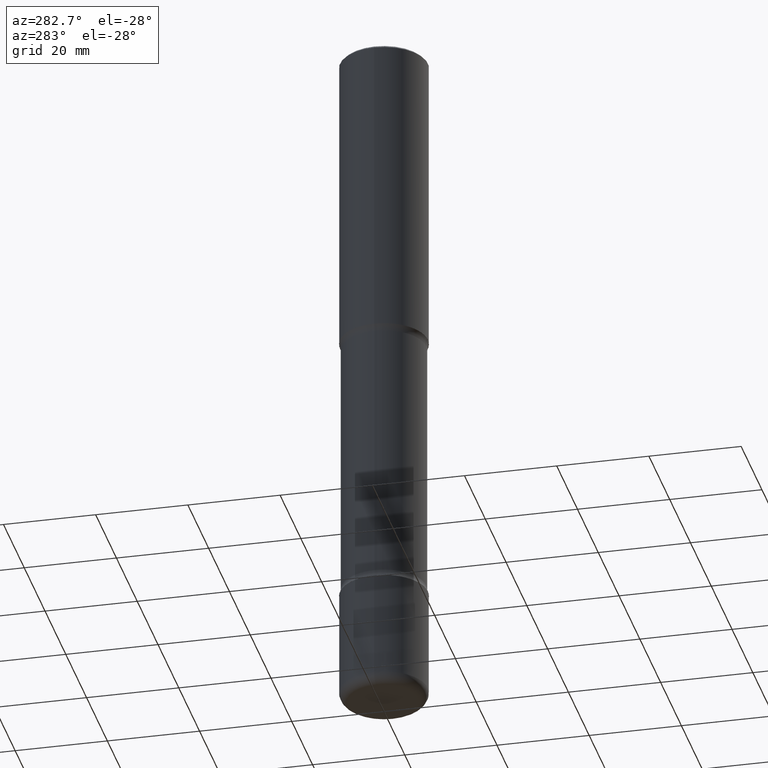
[diagram: clean part render]
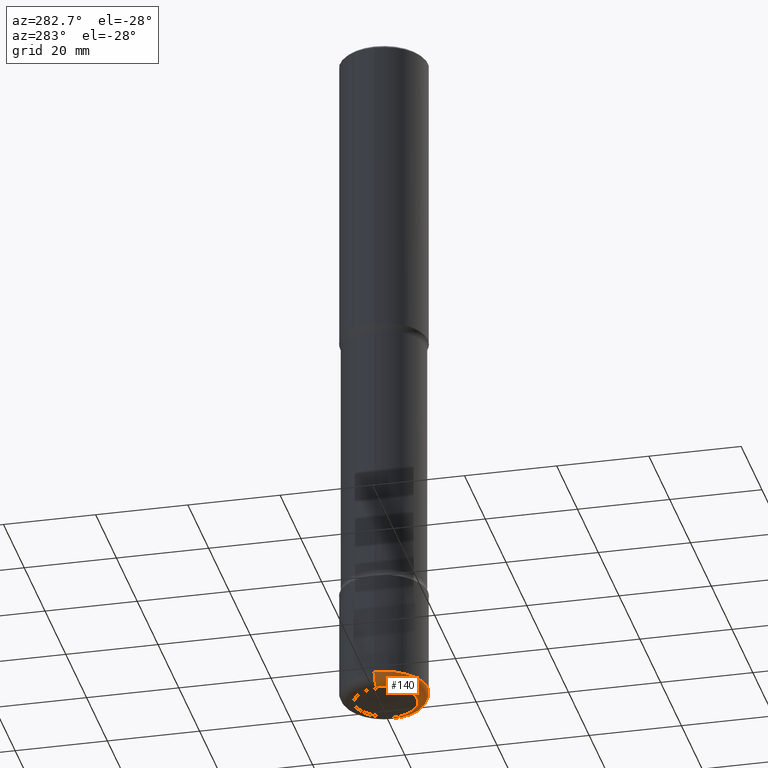
[diagram: same view with one face highlighted and labeled with its STEP entity id]
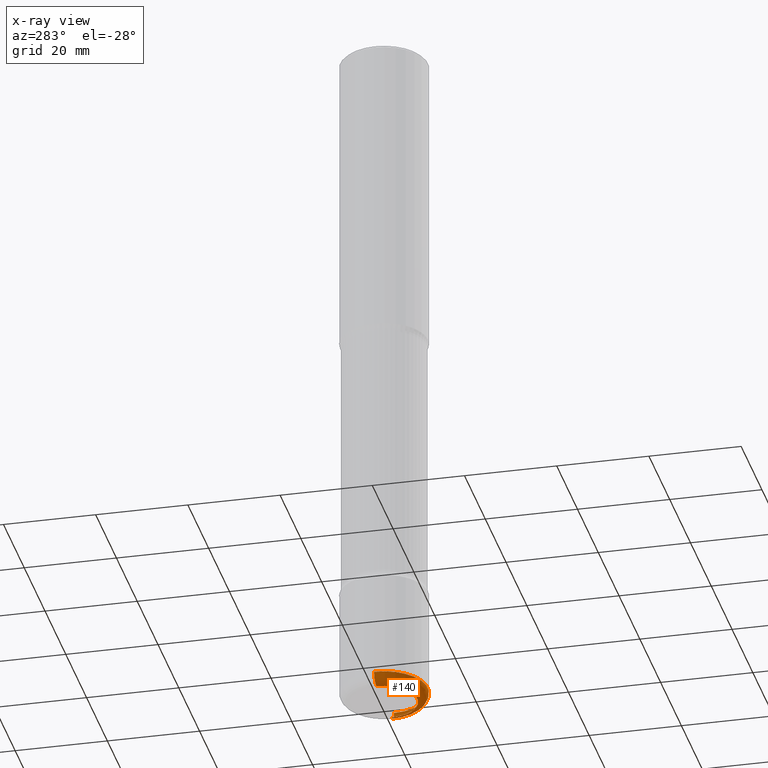
[diagram: x-ray of the same camera — body ghosted, the highlighted face saturated]
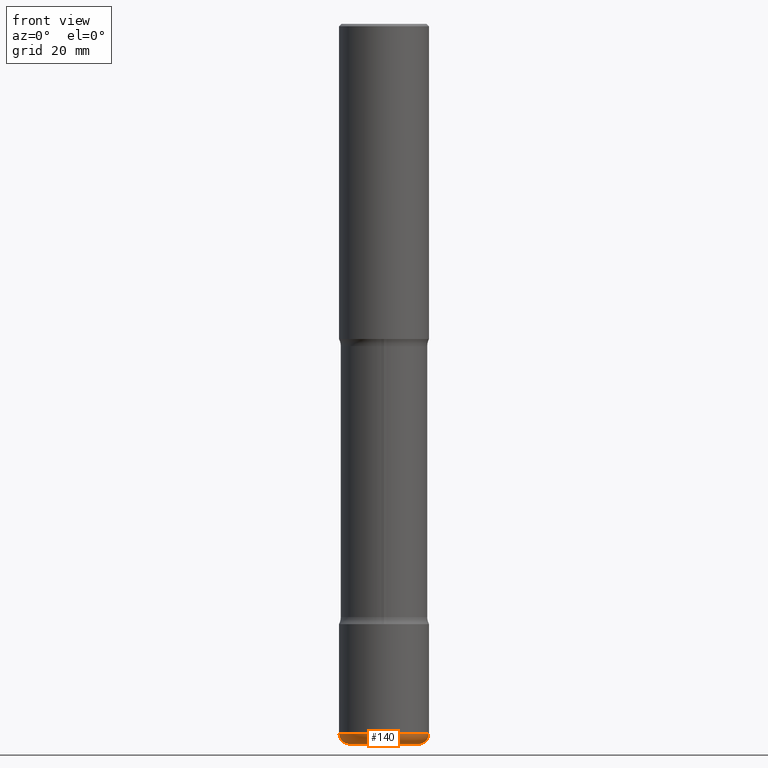
[diagram: same view with one face highlighted and labeled with its STEP entity id]
A machine part, auxiliary view. The second image highlights one B-rep face of the part: STEP entity #140.
The next image is the same camera in x-ray: the body ghosted, the highlighted face saturated — about 0% of this face is hidden behind the body in this view.
A second angle (front view) of the same face is appended — the face is thin or edge-on in the first view.
In plain terms, the highlighted toroidal blend (fillet) surface has major radius 7.239 mm and minor (blend) radius 2.286 mm.
Its self-contained STEP definition (entity closure, byte-faithful):
#12 = TOROIDAL_SURFACE ( 'NONE', #275, 0.2850000000000000311, 0.09000000000000074607 ) ;
#13 = AXIS2_PLACEMENT_3D ( 'NONE', #369, #56, #310 ) ;
#23 = DIRECTION ( 'NONE',  ( 7.105427357601001859E-15, 1.000000000000000000, -3.491481338843145583E-15 ) ) ;
#48 = CIRCLE ( 'NONE', #578, 0.2850000000000000866 ) ;
#56 = DIRECTION ( 'NONE',  ( -2.445468806185136597E-29, 3.491481338843145583E-15, 1.000000000000000000 ) ) ;
#61 = DIRECTION ( 'NONE',  ( 1.000000000000000000, -6.982962677686269077E-15, 4.883557194083113462E-29 ) ) ;
#62 = ORIENTED_EDGE ( 'NONE', *, *, #508, .F. ) ;
#78 = EDGE_CURVE ( 'NONE', #802, #425, #398, .T. ) ;
#90 = DIRECTION ( 'NONE',  ( 1.000000000000000000, -6.982962677686253300E-15, 0.000000000000000000 ) ) ;
#104 = DIRECTION ( 'NONE',  ( -6.982962677686266711E-15, -1.000000000000000000, 3.491481338843145583E-15 ) ) ;
#107 = CARTESIAN_POINT ( 'NONE',  ( -0.2850000000000000311, -1.860960791564670606E-14, -5.910000000000000142 ) ) ;
#123 = VERTEX_POINT ( 'NONE', #462 ) ;
#134 = ORIENTED_EDGE ( 'NONE', *, *, #173, .T. ) ;
#140 = ADVANCED_FACE ( 'NONE', ( #213 ), #12, .T. ) ;
#151 = ORIENTED_EDGE ( 'NONE', *, *, #329, .T. ) ;
#173 = EDGE_CURVE ( 'NONE', #802, #123, #48, .T. ) ;
#177 = DIRECTION ( 'NONE',  ( -2.445468806185136597E-29, 3.491481338843145583E-15, 1.000000000000000000 ) ) ;
#208 = CARTESIAN_POINT ( 'NONE',  ( -0.2850000000000000866, -1.844698034480259838E-14, -6.000000000000001776 ) ) ;
#213 = FACE_OUTER_BOUND ( 'NONE', #587, .T. ) ;
#275 = AXIS2_PLACEMENT_3D ( 'NONE', #714, #305, #61 ) ;
#302 = DIRECTION ( 'NONE',  ( 1.000000000000000000, -6.982962677686258822E-15, 0.000000000000000000 ) ) ;
#305 = DIRECTION ( 'NONE',  ( -2.445468806185136597E-29, 3.491481338843145583E-15, 1.000000000000000000 ) ) ;
#310 = DIRECTION ( 'NONE',  ( 1.000000000000000000, -6.982962677686261189E-15, 0.000000000000000000 ) ) ;
#314 = VERTEX_POINT ( 'NONE', #349 ) ;
#329 = EDGE_CURVE ( 'NONE', #123, #314, #444, .T. ) ;
#349 = CARTESIAN_POINT ( 'NONE',  ( 0.3750000000000003886, -2.325326571669533946E-14, -5.910000000000000142 ) ) ;
#357 = AXIS2_PLACEMENT_3D ( 'NONE', #474, #104, #90 ) ;
#369 = CARTESIAN_POINT ( 'NONE',  ( 1.445272064455415567E-28, -2.063465471256298944E-14, -5.910000000000000142 ) ) ;
#398 = CIRCLE ( 'NONE', #796, 0.09000000000000074607 ) ;
#420 = CARTESIAN_POINT ( 'NONE',  ( -0.3750000000000003886, -1.797011945346261375E-14, -5.910000000000000142 ) ) ;
#422 = ORIENTED_EDGE ( 'NONE', *, *, #78, .F. ) ;
#425 = VERTEX_POINT ( 'NONE', #420 ) ;
#444 = CIRCLE ( 'NONE', #357, 0.09000000000000074607 ) ;
#462 = CARTESIAN_POINT ( 'NONE',  ( 0.2850000000000000866, -2.293903239619946251E-14, -6.000000000000001776 ) ) ;
#474 = CARTESIAN_POINT ( 'NONE',  ( 0.2850000000000000311, -2.262479907570357609E-14, -5.910000000000000142 ) ) ;
#508 = EDGE_CURVE ( 'NONE', #425, #314, #747, .T. ) ;
#578 = AXIS2_PLACEMENT_3D ( 'NONE', #677, #177, #302 ) ;
#587 = EDGE_LOOP ( 'NONE', ( #422, #134, #151, #62 ) ) ;
#649 = DIRECTION ( 'NONE',  ( -1.000000000000000000, 7.105427357601017636E-15, 0.000000000000000000 ) ) ;
#677 = CARTESIAN_POINT ( 'NONE',  ( 1.467281283711082406E-28, -2.094888803305887902E-14, -6.000000000000001776 ) ) ;
#714 = CARTESIAN_POINT ( 'NONE',  ( 1.445272064455415567E-28, -2.063465471256298944E-14, -5.910000000000000142 ) ) ;
#747 = CIRCLE ( 'NONE', #13, 0.3750000000000000555 ) ;
#796 = AXIS2_PLACEMENT_3D ( 'NONE', #107, #23, #649 ) ;
#802 = VERTEX_POINT ( 'NONE', #208 ) ;